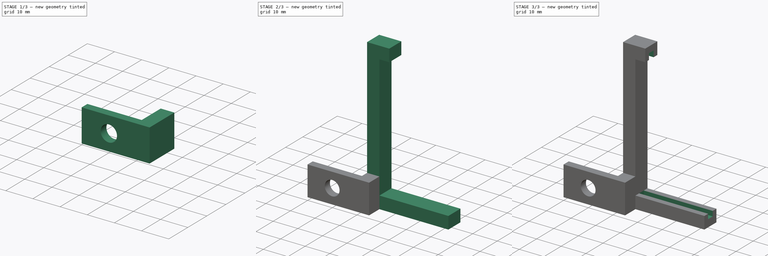
[diagram: build sequence overview — one tinted view per stage of 3, left to right]
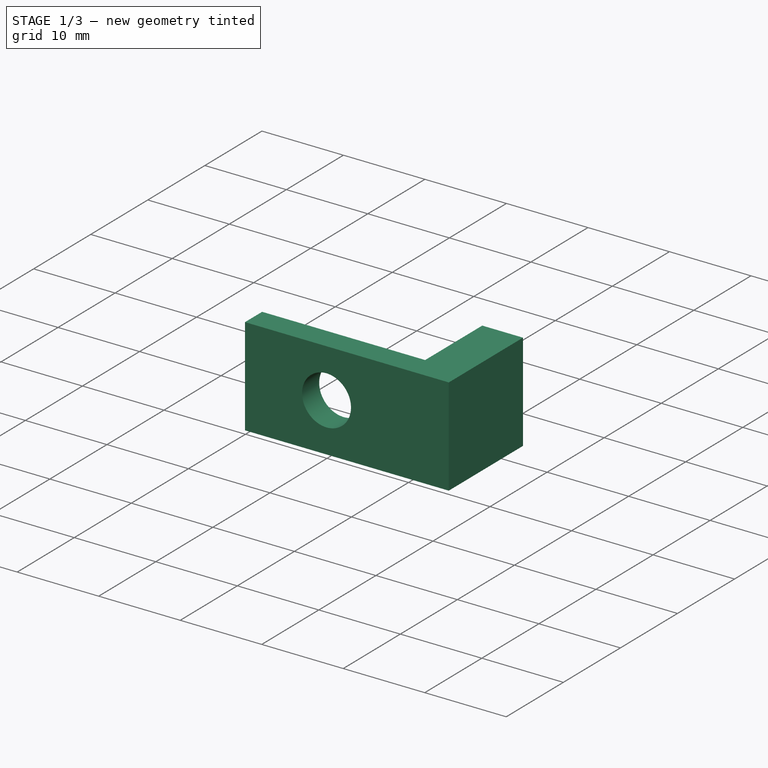
[diagram: stage 1 of 3 — iso view after this stage's code; geometry added in this stage tinted green]
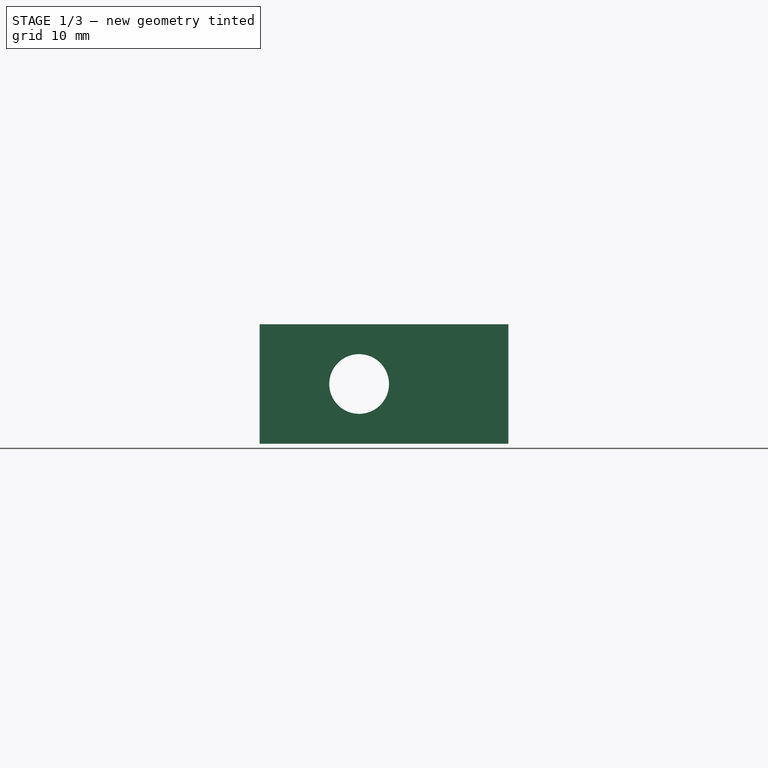
[diagram: stage 1 of 3 — front view after this stage's code; geometry added in this stage tinted green]
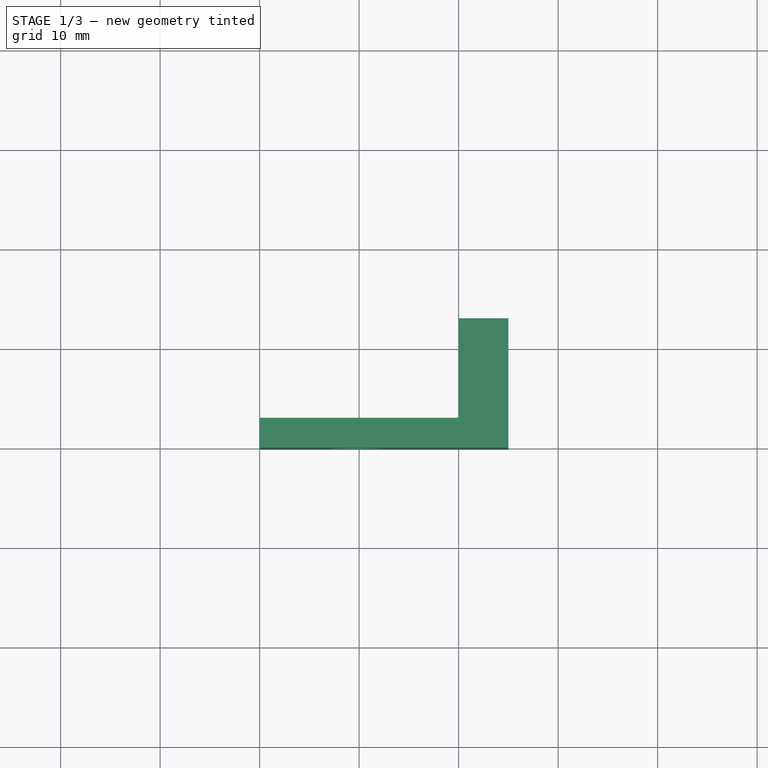
[diagram: stage 1 of 3 — top view after this stage's code; geometry added in this stage tinted green]
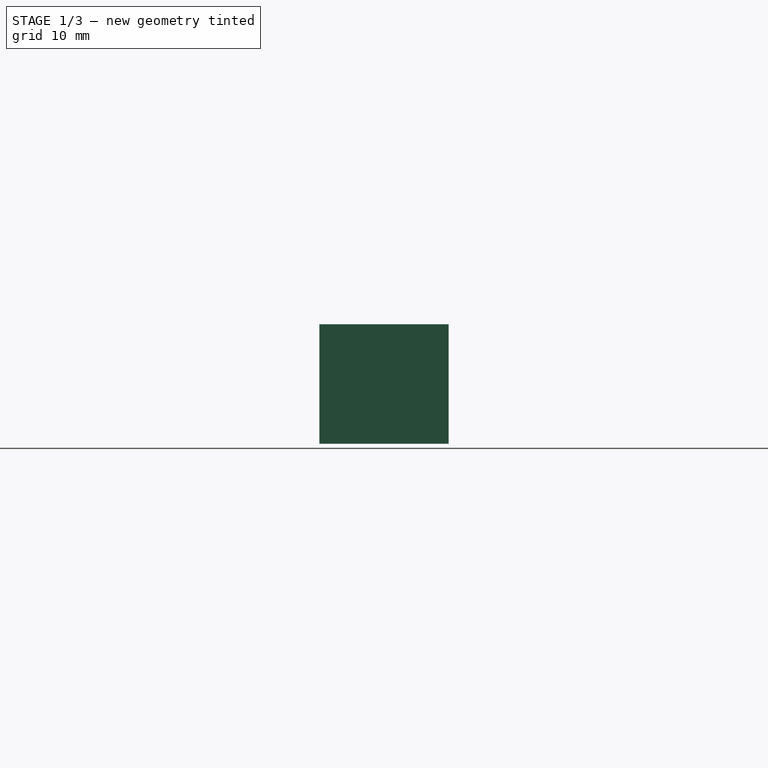
[diagram: stage 1 of 3 — right view after this stage's code; geometry added in this stage tinted green]
FCSTD DOCUMENT  (FreeCAD 0.21R33668 +26 (Git))
Label: SupportMatrix2
License: All rights reserved
LicenseURL: http://en.wikipedia.org/wiki/All_rights_reserved
objects: Sketcher::SketchObject×5, PartDesign::Pad×2, PartDesign::Pocket×2, PartDesign::Hole×1, PartDesign::Body×1
note: 16 computed .brp shape members not serialized (recipe doc carries the construction recipe); baked Part::Feature solids carry a one-line shape summary decoded from their .brp

FEATURE [Sketcher::SketchObject] Sketch
  FullyConstrained = false
  MapMode = 5
  Support = -> [XY_Plane]
  sketch-geometry (6):
    g0: LineSegment StartX=-20 StartY=-10.081 StartZ=0 EndX=5 EndY=-10.081 EndZ=0
    g1: LineSegment StartX=5 StartY=-10.081 StartZ=0 EndX=5 EndY=2.91895 EndZ=0
    g2: LineSegment StartX=5 StartY=2.91895 StartZ=0 EndX=0 EndY=2.91895 EndZ=0
    g3: LineSegment StartX=0 StartY=2.91895 StartZ=0 EndX=0 EndY=-7.08105 EndZ=0
    g4: LineSegment StartX=0 StartY=-7.08105 StartZ=0 EndX=-20 EndY=-7.08105 EndZ=0
    g5: LineSegment StartX=-20 StartY=-7.08105 StartZ=0 EndX=-20 EndY=-10.081 EndZ=0
  constraints (17):
    c: Horizontal(g0)
    c: Coincident(g0,g1)
    c: Vertical(g1)
    c: Coincident(g1,g2)
    c: Horizontal(g2)
    c: Coincident(g2,g3)
    c: Vertical(g3)
    c: Coincident(g3,g4)
    c: Horizontal(g4)
    c: Coincident(g4,g5)
    c: Coincident(g5,g0)
    c: Vertical(g5)
    c: DistanceX(g4,g4) = 20
    c: DistanceY(g3,g3) = 10
    c: DistanceY(g5,g5) = 3
    c: DistanceX(g2,g2) = 5
    c: PointOnObject(g3,g-2)
FEATURE [PartDesign::Pad] Pad
  AllowMultiFace = false
  Direction = (1,1,1)
  Length = 12
  Length2 = 100
  Profile = -> Sketch
  Type = 0
FEATURE [Sketcher::SketchObject] Sketch001
  ExternalGeometry = -> [Sketch]
  FullyConstrained = false
  MapMode = 5
  Placement = pos=(0,-10.081,0) rot=(1,0,0;1.5708rad)
  Support = -> [Pad]
  sketch-geometry (3):
    g0: Circle CenterX=-10 CenterY=6 CenterZ=0 NormalX=0 NormalY=0 NormalZ=1 AngleXU=0 Radius=1.75
    g1: LineSegment StartX=0 StartY=13.5632 StartZ=0 EndX=0 EndY=-1.69351 EndZ=0
    g2: LineSegment StartX=-14.5259 StartY=0 StartZ=0 EndX=-7.5133 EndY=0 EndZ=0
  constraints (2):
    c: Diameter(g0) = 3.5
    c: Distance(g0,g2) = 6
FEATURE [PartDesign::Hole] Hole
  AllowMultiFace = false
  BaseFeature = -> Pad
  CustomThreadClearance = 0
  Depth = 25
  DepthType = 1
  Diameter = 6
  DrillForDepth = false
  DrillPoint = 1
  DrillPointAngle = 118
  HoleCutCountersinkAngle = 90
  HoleCutCustomValues = false
  HoleCutDepth = 0
  HoleCutDiameter = 0
  HoleCutType = 0
  ModelThread = false
  Profile = -> Sketch001
  Tapered = false
  TaperedAngle = 90
  ThreadClass = 0
  ThreadDepth = 23.5
  ThreadDepthType = 0
  ThreadDirection = 0
  ThreadFit = 0
  ThreadSize = 0
  ThreadType = 0
  Threaded = false
  UseCustomThreadClearance = false
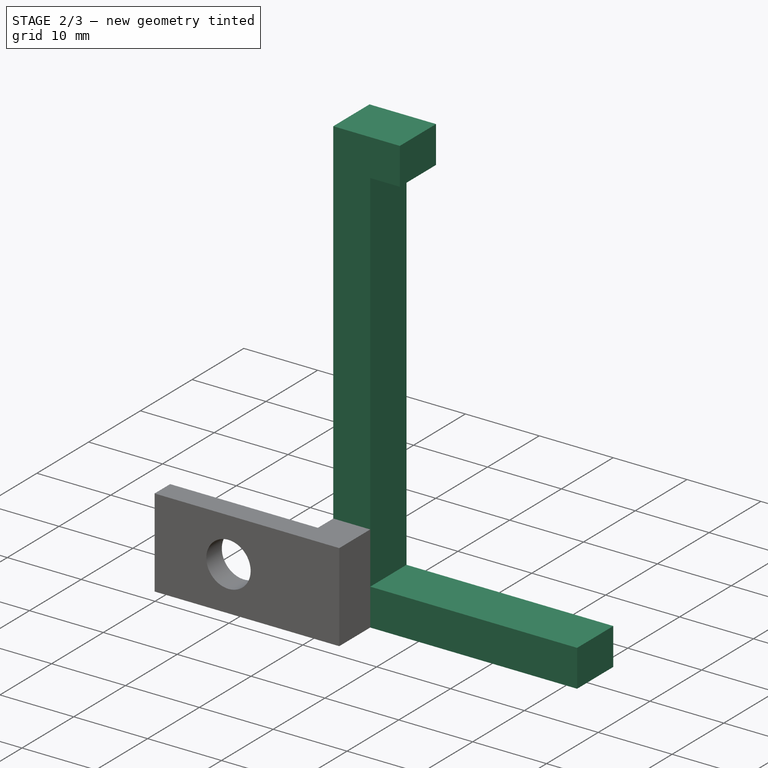
[diagram: stage 2 of 3 — iso view after this stage's code; geometry added in this stage tinted green]
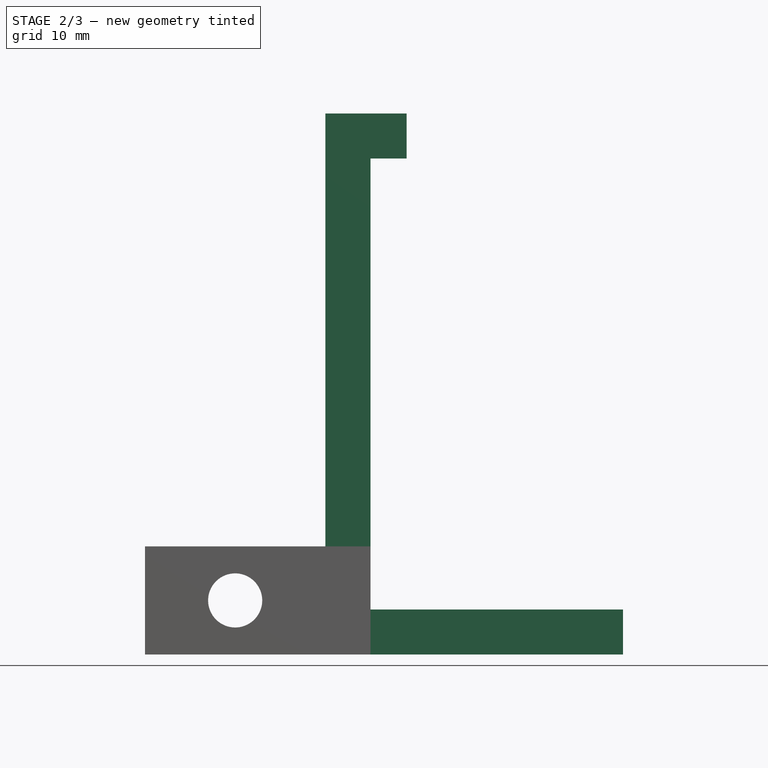
[diagram: stage 2 of 3 — front view after this stage's code; geometry added in this stage tinted green]
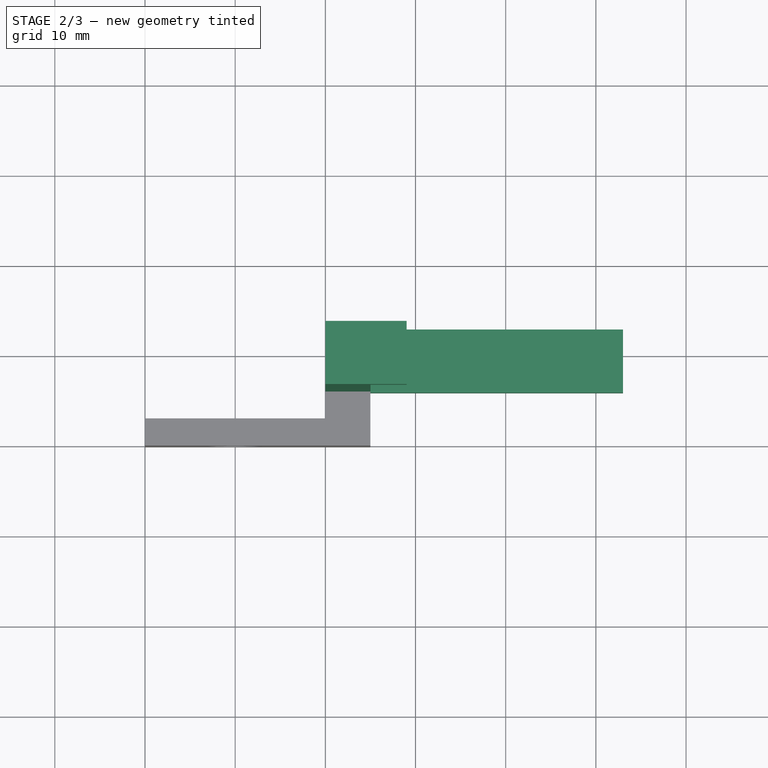
[diagram: stage 2 of 3 — top view after this stage's code; geometry added in this stage tinted green]
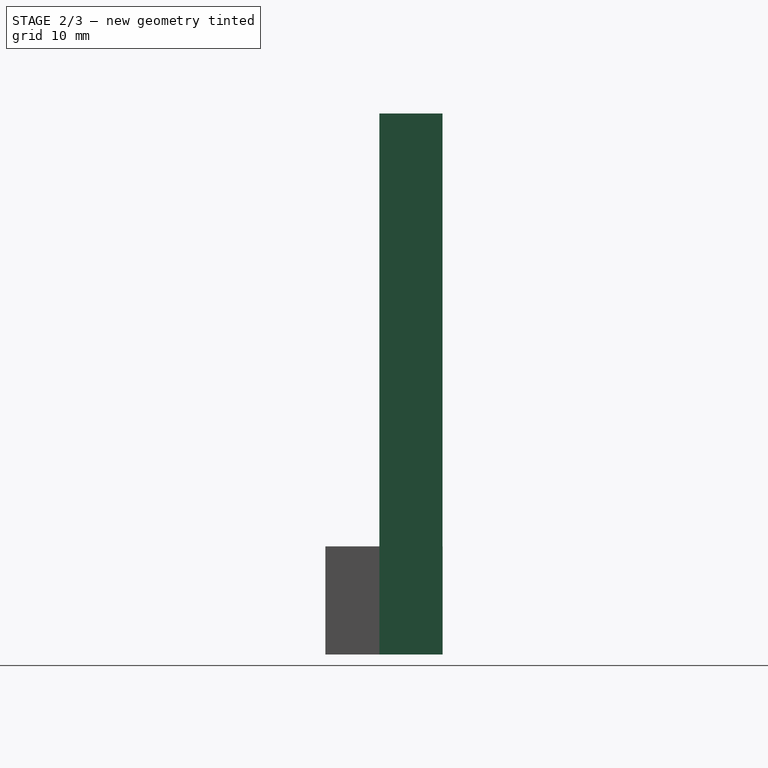
[diagram: stage 2 of 3 — right view after this stage's code; geometry added in this stage tinted green]
FEATURE [Sketcher::SketchObject] Sketch002
  ExternalGeometry = -> [Sketch]
  FullyConstrained = false
  MapMode = 5
  Placement = pos=(0,2.9,0) rot=(1,0,0;1.5708rad)
  sketch-geometry (9):
    g0: LineSegment StartX=33.0089 StartY=5 StartZ=0 EndX=33.0089 EndY=0 EndZ=0
    g1: LineSegment StartX=33.0089 StartY=0 StartZ=0 EndX=0 EndY=0 EndZ=0
    g2: LineSegment StartX=0 StartY=0 StartZ=0 EndX=0 EndY=11.9912 EndZ=0
    g3: LineSegment StartX=0 StartY=11.9912 StartZ=0 EndX=0 EndY=60 EndZ=0
    g4: LineSegment StartX=0 StartY=60 StartZ=0 EndX=9.0089 EndY=60 EndZ=0
    g5: LineSegment StartX=9.0089 StartY=60 StartZ=0 EndX=9.0089 EndY=55 EndZ=0
    g6: LineSegment StartX=9.0089 StartY=55 StartZ=0 EndX=5.0089 EndY=55 EndZ=0
    g7: LineSegment StartX=5.0089 StartY=55 StartZ=0 EndX=5.0089 EndY=5 EndZ=0
    g8: LineSegment StartX=5.0089 StartY=5 StartZ=0 EndX=33.0089 EndY=5 EndZ=0
  constraints (23):
    c: Coincident(g4,g5)
    c: Coincident(g5,g6)
    c: Vertical(g5)
    c: DistanceX(g6,g6) = 4
    c: Vertical(g3)
    c: Vertical(g2)
    c: Coincident(g3,g4)
    c: Horizontal(g4)
    c: Horizontal(g8)
    c: Coincident(g6,g7)
    c: Horizontal(g6)
    c: Vertical(g7)
    c: Coincident(g8,g7)
    c: Coincident(g0,g8)
    c: Vertical(g0)
    c: DistanceX(g8,g8) = 28
    c: DistanceY(g7,g7) = 50
    c: DistanceY(g5,g5) = 5
    c: Coincident(g2,g-1)
    c: Coincident(g1,g0)
    c: DistanceY(g0,g0) = 5
    c: Horizontal(g1)
    c: Coincident(g1,g-1)
FEATURE [PartDesign::Pad] Pad001
  AllowMultiFace = false
  BaseFeature = -> Hole
  Direction = (1,1,1)
  Length = 7
  Length2 = 100
  Profile = -> Sketch002
  Type = 0
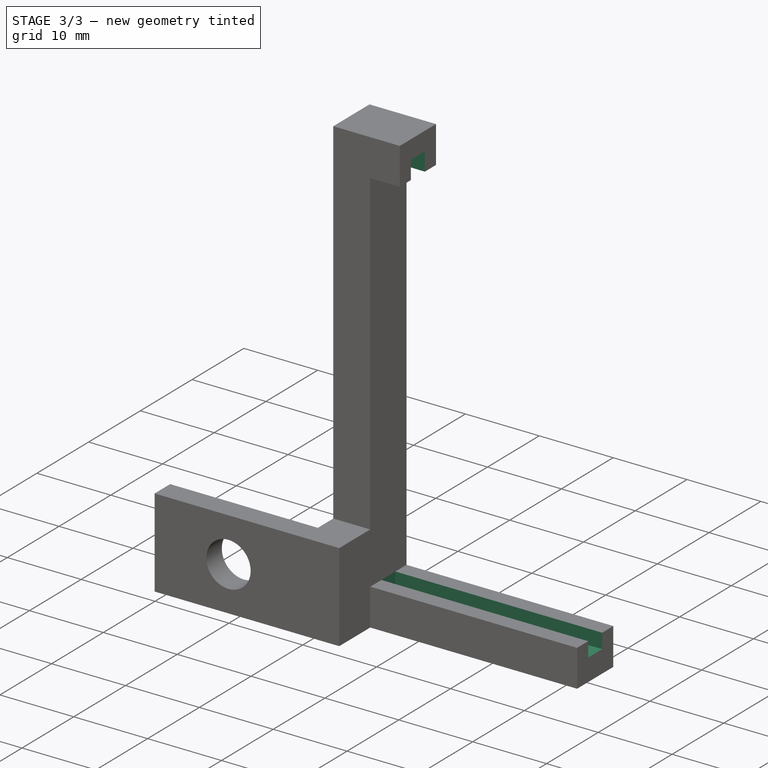
[diagram: stage 3 of 3 — iso view after this stage's code; geometry added in this stage tinted green]
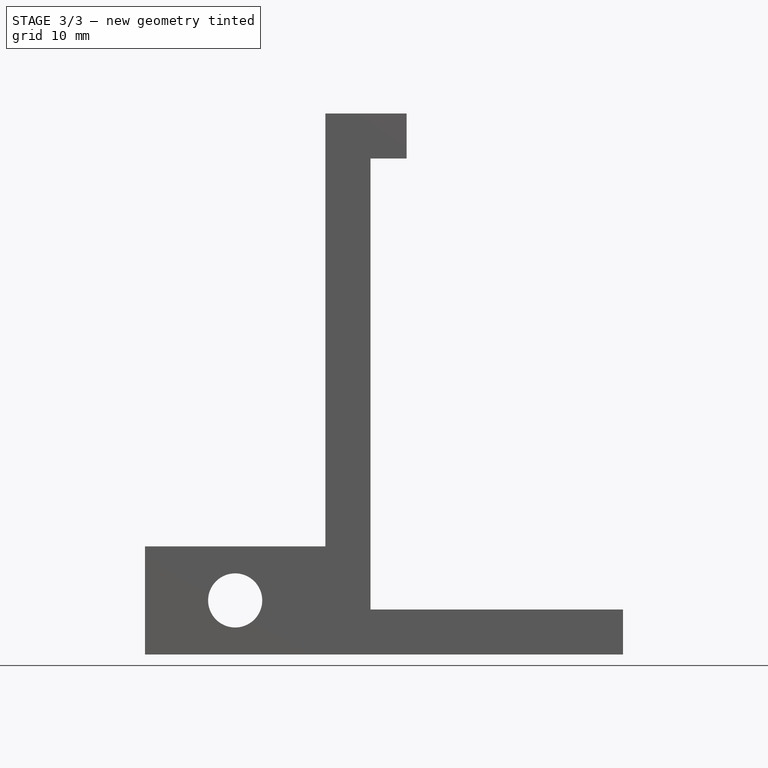
[diagram: stage 3 of 3 — front view after this stage's code; geometry added in this stage tinted green]
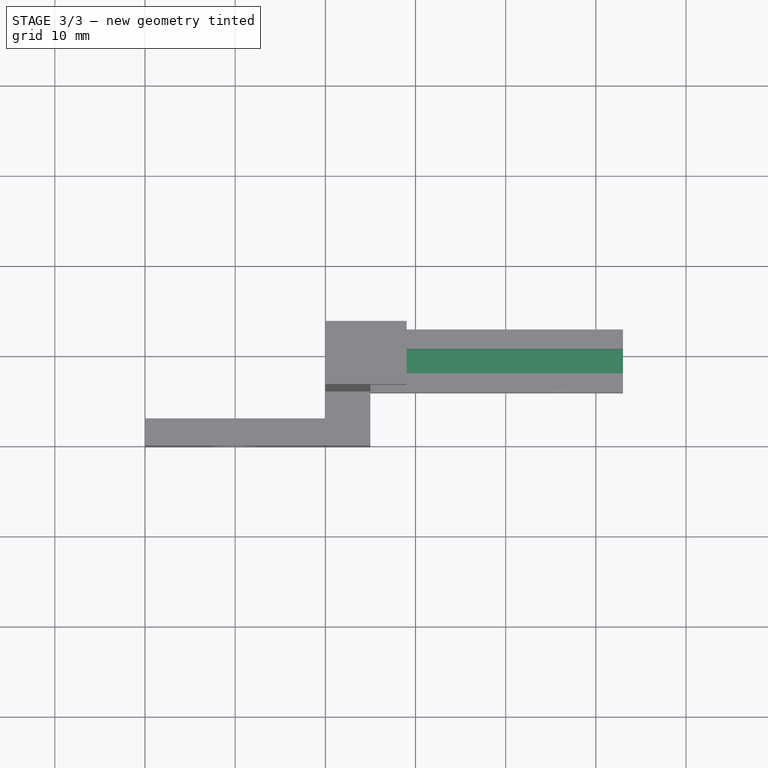
[diagram: stage 3 of 3 — top view after this stage's code; geometry added in this stage tinted green]
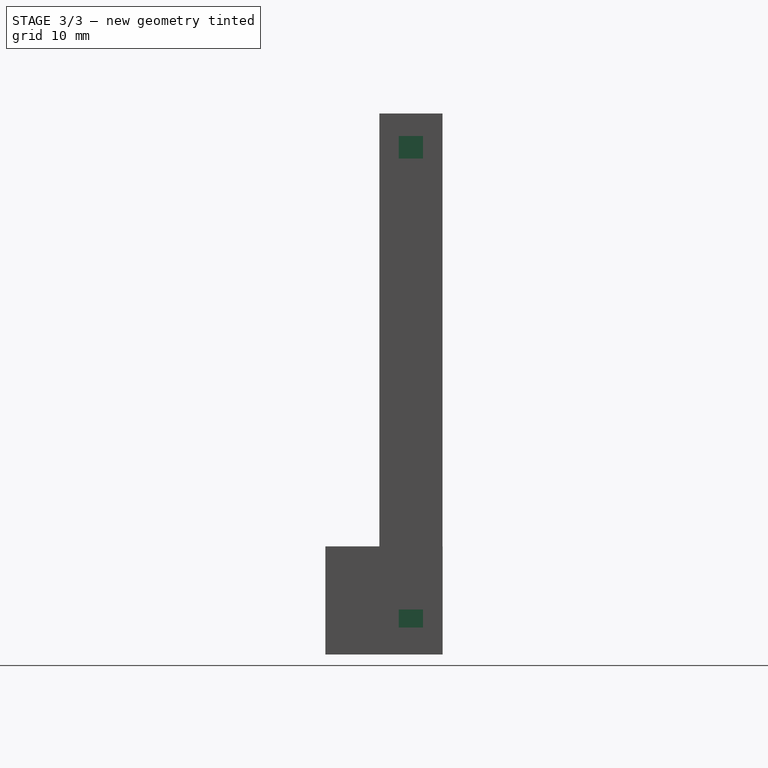
[diagram: stage 3 of 3 — right view after this stage's code; geometry added in this stage tinted green]
FEATURE [Sketcher::SketchObject] Sketch003
  AttachmentOffset = pos=(0,-6,0) rot=(0,0,1;0rad)
  ExternalGeometry = -> [Sketch002]
  FullyConstrained = false
  MapMode = 5
  Placement = pos=(0,-6,5) rot=(0,0,1;0rad)
  Support = -> [Pad001]
  sketch-geometry (4):
    g0: LineSegment StartX=33.0089 StartY=4.05 StartZ=0 EndX=5.0089 EndY=4.05 EndZ=0
    g1: LineSegment StartX=5.0089 StartY=4.05 StartZ=0 EndX=5.0089 EndY=6.75 EndZ=0
    g2: LineSegment StartX=5.0089 StartY=6.75 StartZ=0 EndX=33.0089 EndY=6.75 EndZ=0
    g3: LineSegment StartX=33.0089 StartY=6.75 StartZ=0 EndX=33.0089 EndY=4.05 EndZ=0
  constraints (10):
    c: Coincident(g0,g1)
    c: Coincident(g1,g2)
    c: Coincident(g2,g3)
    c: Coincident(g3,g0)
    c: Horizontal(g0)
    c: Horizontal(g2)
    c: Vertical(g1)
    c: Vertical(g3)
    c: DistanceY(g1,g1) = 2.7
    c: DistanceY(g2,g-5) = 2.15
FEATURE [PartDesign::Pocket] Pocket
  AllowMultiFace = false
  BaseFeature = -> Pad001
  Direction = (1,1,1)
  Length = 2
  Length2 = 100
  Profile = -> Sketch003
  Type = 0
FEATURE [Sketcher::SketchObject] Sketch004
  AttachmentOffset = pos=(54,-23,0) rot=(0,0,1;0rad)
  ExternalGeometry = -> [Pocket,Sketch002]
  FullyConstrained = false
  MapMode = 5
  Placement = pos=(54,23,55) rot=(1,0,0;3.14159rad)
  Support = -> [Pocket]
  sketch-geometry (4):
    g0: LineSegment StartX=-48.9614 StartY=24.95 StartZ=0 EndX=-44.9614 EndY=24.95 EndZ=0
    g1: LineSegment StartX=-44.9614 StartY=24.95 StartZ=0 EndX=-44.9614 EndY=22.25 EndZ=0
    g2: LineSegment StartX=-44.9614 StartY=22.25 StartZ=0 EndX=-48.9614 EndY=22.25 EndZ=0
    g3: LineSegment StartX=-48.9614 StartY=22.25 StartZ=0 EndX=-48.9614 EndY=24.95 EndZ=0
  constraints (11):
    c: Coincident(g0,g1)
    c: Coincident(g1,g2)
    c: Coincident(g2,g3)
    c: Coincident(g3,g0)
    c: Horizontal(g0)
    c: Horizontal(g2)
    c: Vertical(g1)
    c: Vertical(g3)
    c: DistanceY(g1,g1) = 2.7
    c: DistanceX(g2,g2) = 4
    c: DistanceY(g-4,g2) = 2.15
FEATURE [PartDesign::Pocket] Pocket001
  AllowMultiFace = false
  BaseFeature = -> Pocket
  Direction = (1,1,1)
  Length = 2.5
  Length2 = 100
  Profile = -> Sketch004
  Type = 0
FEATURE [PartDesign::Body] Body
  Group = -> [Sketch,Pad,Sketch001,Hole,Sketch002,Pad001,Sketch003,Pocket,Sketch004,Pocket001]
  Origin = -> Origin
  Tip = -> Pocket001
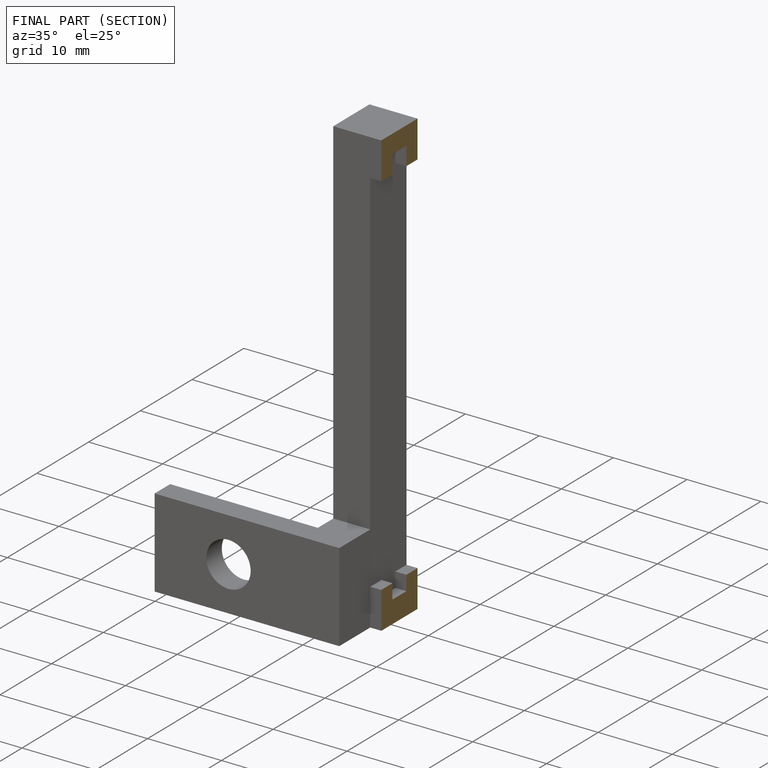
[diagram: finished part — half-section view (interior)]
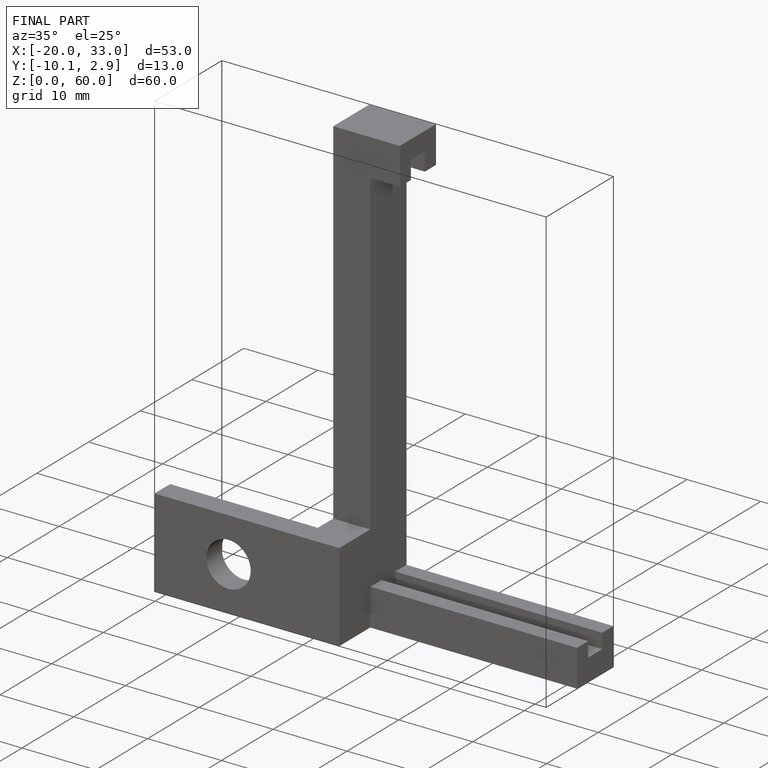
[diagram: finished part — iso view with bounding-box wireframe]
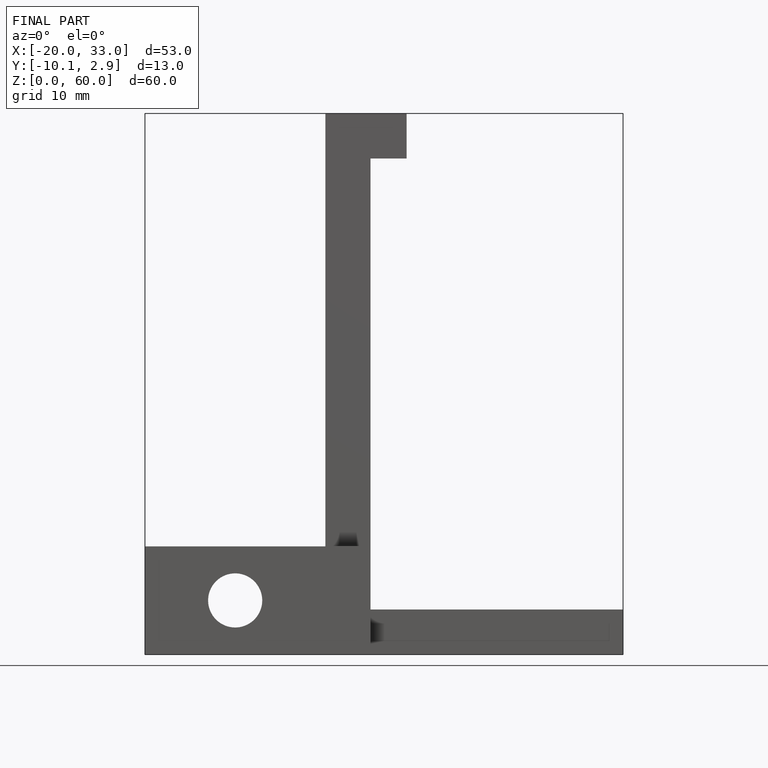
[diagram: finished part — front view with bounding-box wireframe]
